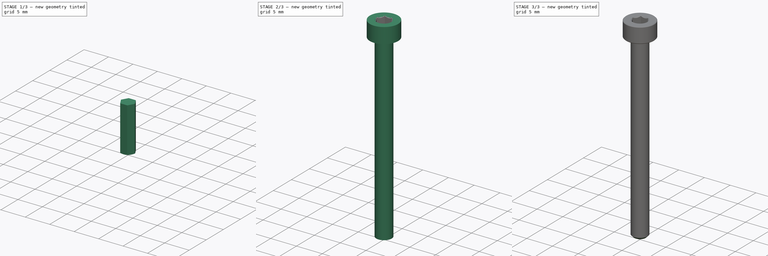
[diagram: build sequence overview — one tinted view per stage of 3, left to right]
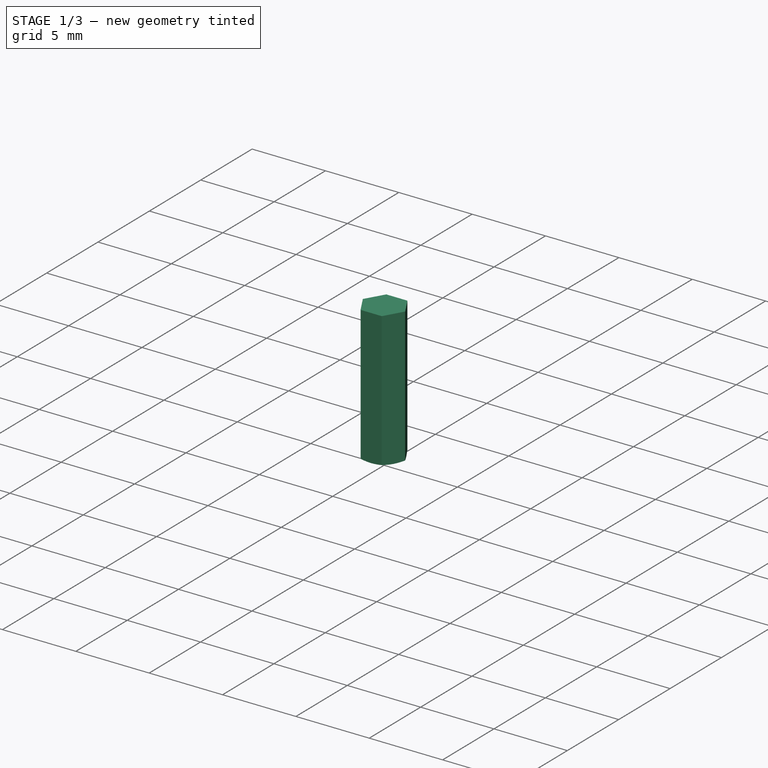
[diagram: stage 1 of 3 — iso view after this stage's code; geometry added in this stage tinted green]
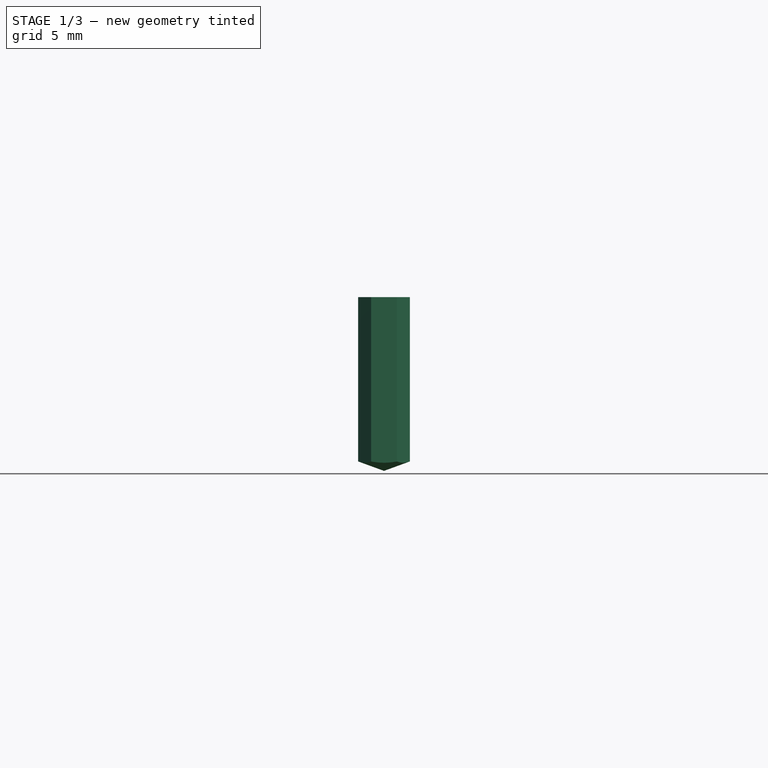
[diagram: stage 1 of 3 — front view after this stage's code; geometry added in this stage tinted green]
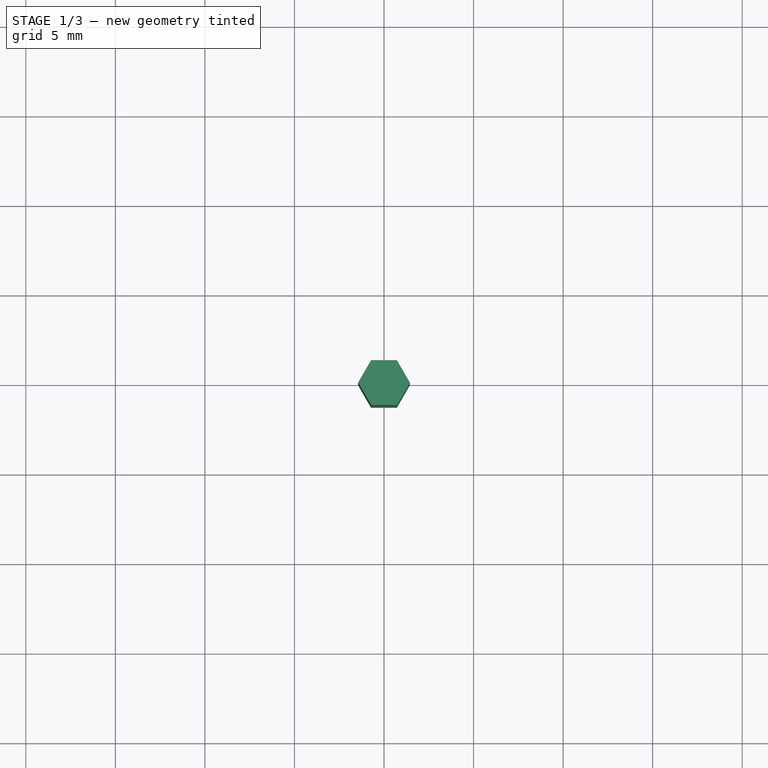
[diagram: stage 1 of 3 — top view after this stage's code; geometry added in this stage tinted green]
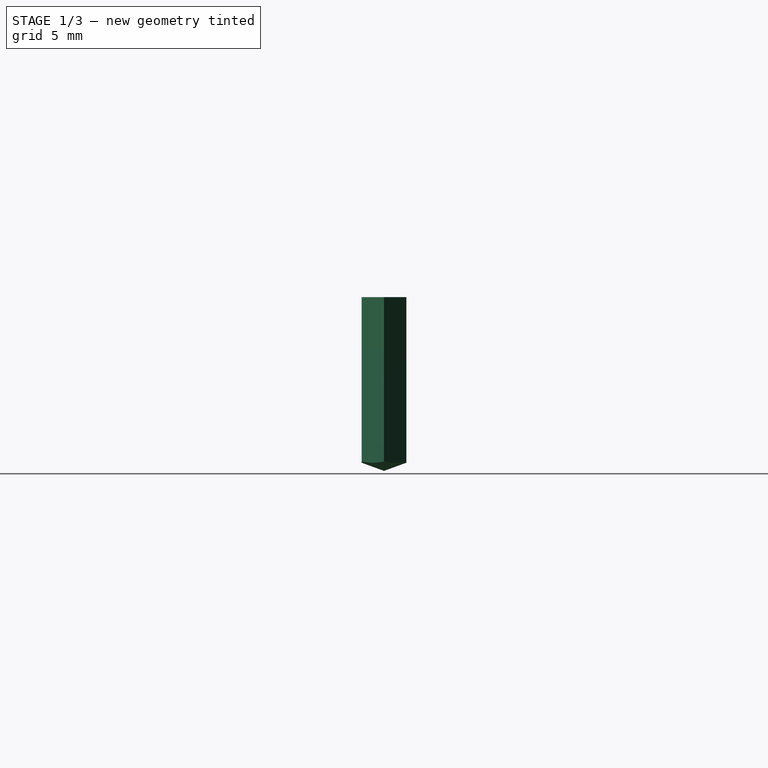
[diagram: stage 1 of 3 — right view after this stage's code; geometry added in this stage tinted green]
FCSTD DOCUMENT  (FreeCAD 0.14R3702 (Git))
Label: ISO4762_Hex_Socket_Head_Cap_Screw_M3x35
License: CC-BY 3.0
LicenseURL: http://creativecommons.org/licenses/by/3.0/
objects: Sketcher::SketchObject×3, PartDesign::Revolution×2, Part::Chamfer×2, PartDesign::Pocket×1, Part::Cut×1
note: 12 computed .brp shape members not serialized (recipe doc carries the construction recipe); baked Part::Feature solids carry a one-line shape summary decoded from their .brp

FEATURE [Sketcher::SketchObject] Sketch003  label="Sketch002"
  Placement = pos=(0,0,0) rot=(1,0,0;1.5708rad)
  sketch-geometry (4):
    g0: LineSegment StartX=0 StartY=0.29908 StartZ=0 EndX=2.75 EndY=1.3 EndZ=0
    g1: LineSegment StartX=2.75 StartY=1.3 StartZ=0 EndX=2.75 EndY=10 EndZ=0
    g2: LineSegment StartX=2.75 StartY=10 StartZ=0 EndX=0 EndY=10 EndZ=0
    g3: LineSegment StartX=0 StartY=10 StartZ=0 EndX=0 EndY=0.29908 EndZ=0
  constraints (12):
    c: Coincident(g0,g1)
    c: Vertical(g1)
    c: Coincident(g1,g2)
    c: Horizontal(g2)
    c: Coincident(g2,g3)
    c: Vertical(g3)
    c: Coincident(g0,g3)
    c: DistanceX(g2) = -2.75
    c: PointOnObject(g0,g-2)
    c: DistanceY(g-1,g0) = 1.3
    c: DistanceY(g2) = 10
    c: Angle(g0,g3) = 1.22173
FEATURE [PartDesign::Revolution] Revolution001
  Angle = 360
  Axis = (0,0,1)
  Base = (0,0,0)
  Placement = pos=(0,0,0) rot=(1,0,0;1.5708rad)
  ReferenceAxis = -> Sketch003 [V_Axis]
  Reversed = true
  Sketch = -> Sketch003
FEATURE [Sketcher::SketchObject] Sketch001  label="Hexagon"
  ExternalGeometry = -> [Revolution001]
  Placement = pos=(0,0,10) rot=(0,0,1;3.14159rad)
  Support = -> Revolution001 [Face3]
  sketch-geometry (9):
    g0: LineSegment StartX=-0.721688 StartY=1.25 StartZ=0 EndX=0.721688 EndY=1.25 EndZ=0
    g1: LineSegment StartX=0.721688 StartY=1.25 StartZ=0 EndX=1.44338 EndY=0 EndZ=0
    g2: LineSegment StartX=1.44338 StartY=0 StartZ=0 EndX=0.721688 EndY=-1.25 EndZ=0
    g3: LineSegment StartX=0.721688 StartY=-1.25 StartZ=0 EndX=-0.721688 EndY=-1.25 EndZ=0
    g4: LineSegment StartX=-0.721688 StartY=-1.25 StartZ=0 EndX=-1.44338 EndY=0 EndZ=0
    g5: LineSegment StartX=-1.44338 StartY=0 StartZ=0 EndX=-0.721688 EndY=1.25 EndZ=0
    g6: Circle [constr] CenterX=0 CenterY=0 CenterZ=0 NormalX=0 NormalY=0 NormalZ=1 Radius=1.44338
    g7: Circle CenterX=0 CenterY=0 CenterZ=0 NormalX=0 NormalY=0 NormalZ=1 Radius=3.75
    g8: LineSegment [constr] StartX=0 StartY=3.75 StartZ=0 EndX=0 EndY=2.75 EndZ=0
  constraints (26):
    c: Horizontal(g0)
    c: Coincident(g0,g1)
    c: Coincident(g1,g2)
    c: Coincident(g2,g3)
    c: Horizontal(g3)
    c: Coincident(g3,g4)
    c: Coincident(g4,g5)
    c: Coincident(g5,g0)
    c: Equal(g5,g0)
    c: Equal(g0,g4)
    c: Equal(g4,g3)
    c: Equal(g3,g2)
    c: Equal(g2,g1)
    c: PointOnObject(g0,g6)
    c: PointOnObject(g2,g6)
    c: PointOnObject(g1,g6)
    c: PointOnObject(g4,g6)
    c: PointOnObject(g0,g6)
    c: DistanceY(g3,g0) = 2.5
    c: Coincident(g6,g-1)
    c: Coincident(g7,g-1)
    c: Vertical(g8)
    c: PointOnObject(g8,g7)
    c: PointOnObject(g8,g-2)
    c: DistanceY(g8) = -1
    c: PointOnObject(g8,g-3)
FEATURE [PartDesign::Pocket] Pocket
  Length = 5
  Placement = pos=(0,0,0) rot=(1,0,0;1.5708rad)
  Sketch = -> Sketch001
  Type = 1
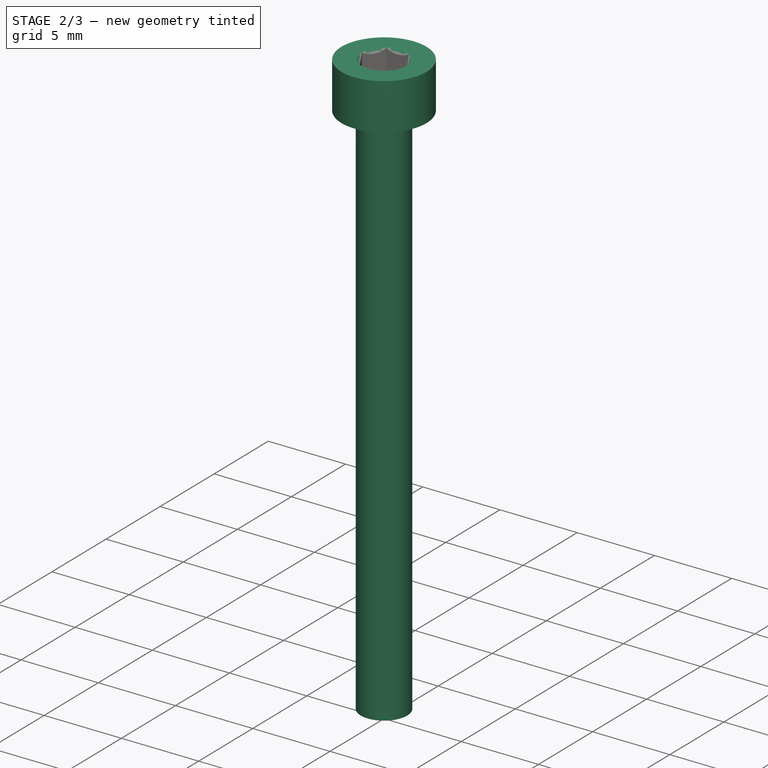
[diagram: stage 2 of 3 — iso view after this stage's code; geometry added in this stage tinted green]
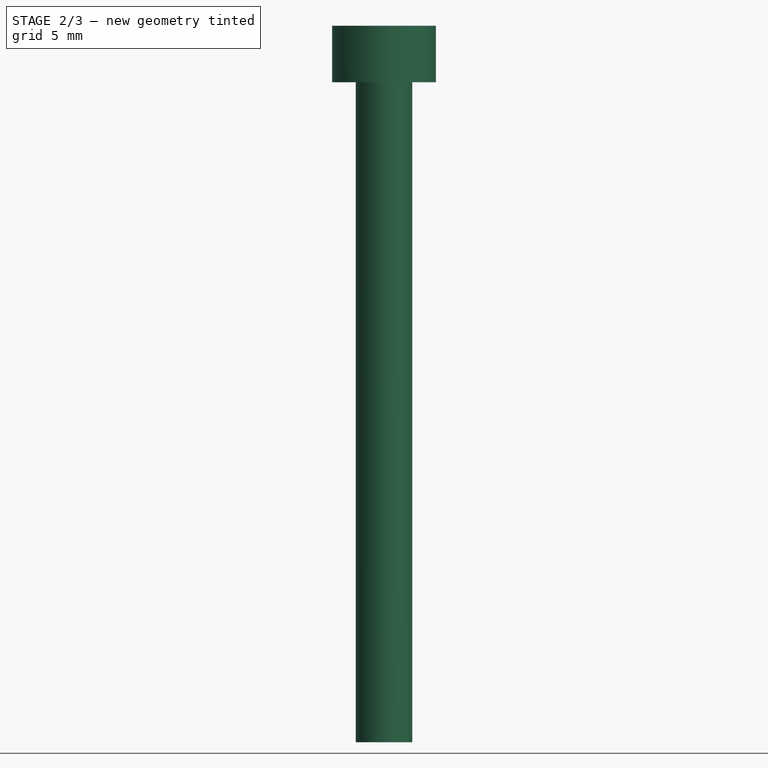
[diagram: stage 2 of 3 — front view after this stage's code; geometry added in this stage tinted green]
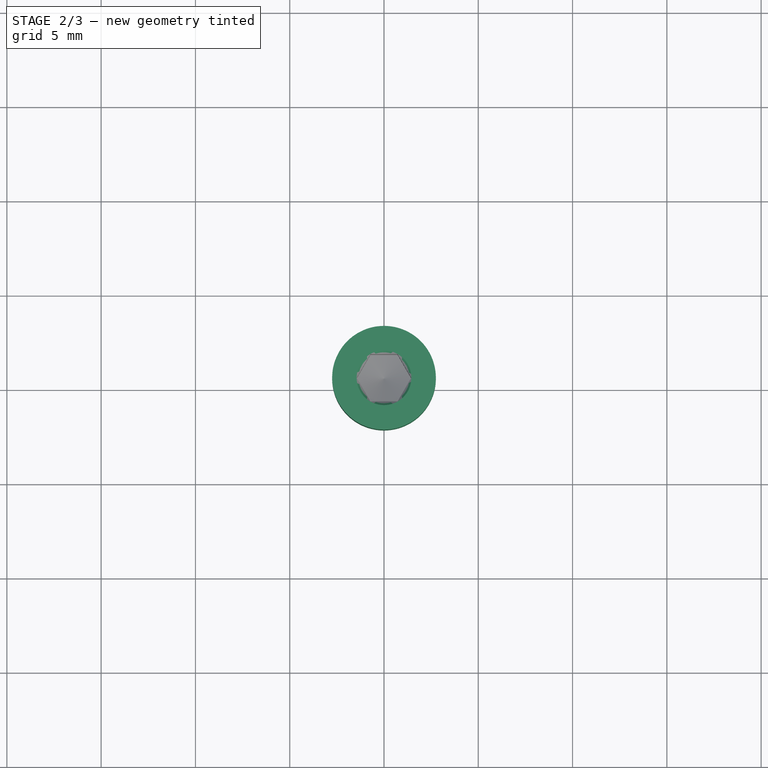
[diagram: stage 2 of 3 — top view after this stage's code; geometry added in this stage tinted green]
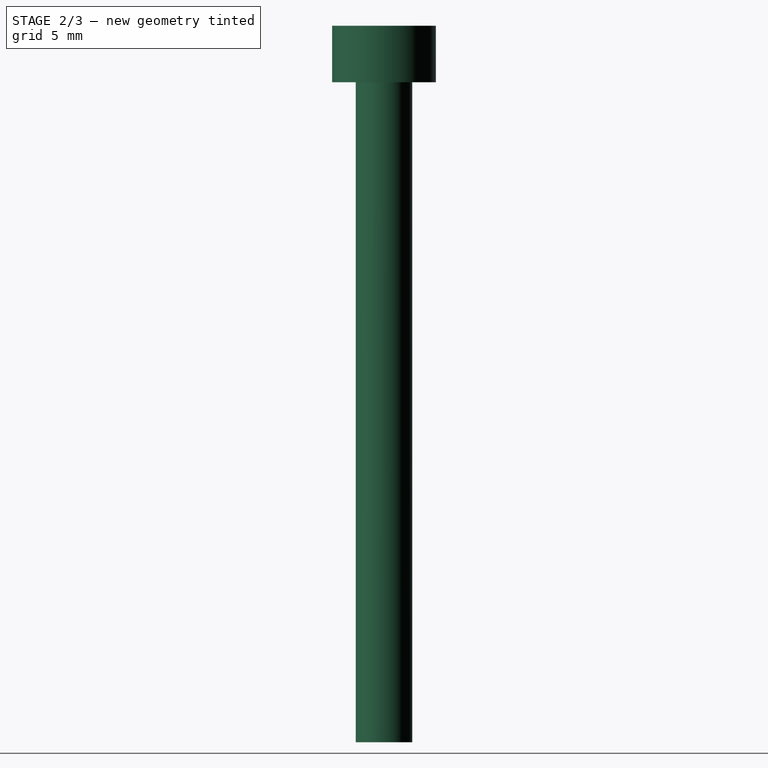
[diagram: stage 2 of 3 — right view after this stage's code; geometry added in this stage tinted green]
FEATURE [Sketcher::SketchObject] Sketch
  Placement = pos=(0,0,0) rot=(1,0,0;1.5708rad)
  sketch-geometry (7):
    g0: LineSegment StartX=1.45 StartY=3 StartZ=0 EndX=2.75 EndY=3 EndZ=0
    g1: LineSegment StartX=2.75 StartY=3 StartZ=0 EndX=2.75 EndY=0 EndZ=0
    g2: LineSegment StartX=2.75 StartY=0 StartZ=0 EndX=1.5 EndY=0 EndZ=0
    g3: LineSegment StartX=1.5 StartY=0 StartZ=0 EndX=1.5 EndY=-35 EndZ=0
    g4: LineSegment StartX=1.5 StartY=-35 StartZ=0 EndX=0 EndY=-35 EndZ=0
    g5: LineSegment StartX=0 StartY=-35 StartZ=0 EndX=0 EndY=1.55 EndZ=0
    g6: LineSegment StartX=0 StartY=1.55 StartZ=0 EndX=1.45 EndY=3 EndZ=0
  constraints (21):
    c: Horizontal(g0)
    c: Coincident(g0,g1)
    c: Vertical(g1)
    c: Coincident(g1,g2)
    c: Horizontal(g2)
    c: Coincident(g2,g3)
    c: Vertical(g3)
    c: Coincident(g3,g4)
    c: Horizontal(g4)
    c: Coincident(g4,g5)
    c: Vertical(g5)
    c: Coincident(g0,g6)
    c: DistanceX(g4) = -1.5
    c: DistanceY(g1,g3) = -35
    c: Angle(g6,g0) = 2.35619
    c: DistanceY(g1) = -3
    c: DistanceX(g0,g5) = -2.75
    c: DistanceX(g0,g5) = -1.45
    c: PointOnObject(g1,g-1)
    c: PointOnObject(g5,g-2)
    c: Coincident(g6,g5)
FEATURE [PartDesign::Revolution] Revolution  label="main-body"
  Angle = 360
  Axis = (0,0,1)
  Base = (0,0,0)
  Placement = pos=(0,0,0) rot=(1,0,0;1.5708rad)
  ReferenceAxis = -> Sketch [V_Axis]
  Reversed = true
  Sketch = -> Sketch
FEATURE [Part::Cut] Cut
  Base = -> Revolution
  Tool = -> Pocket
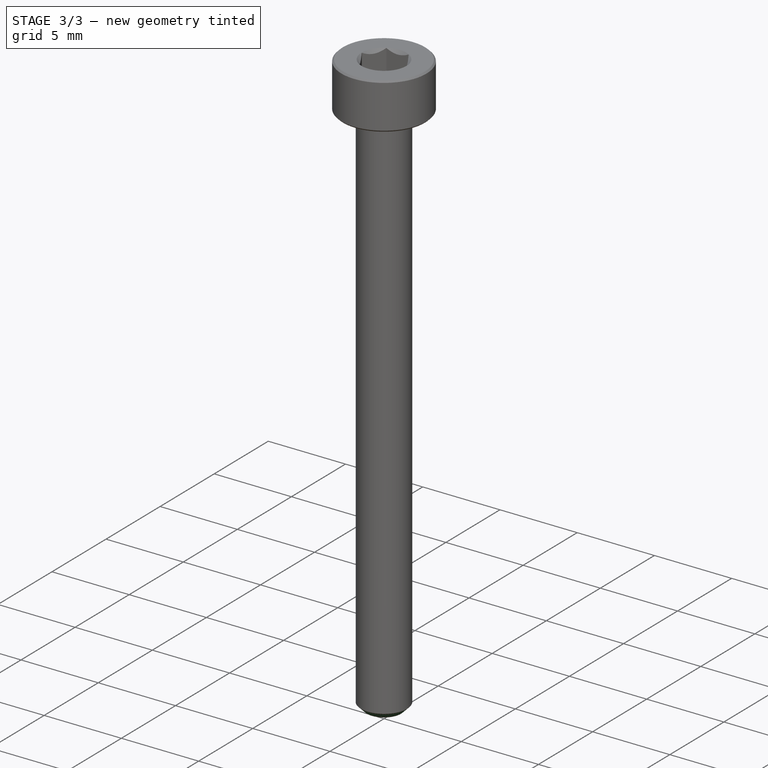
[diagram: stage 3 of 3 — iso view after this stage's code; geometry added in this stage tinted green]
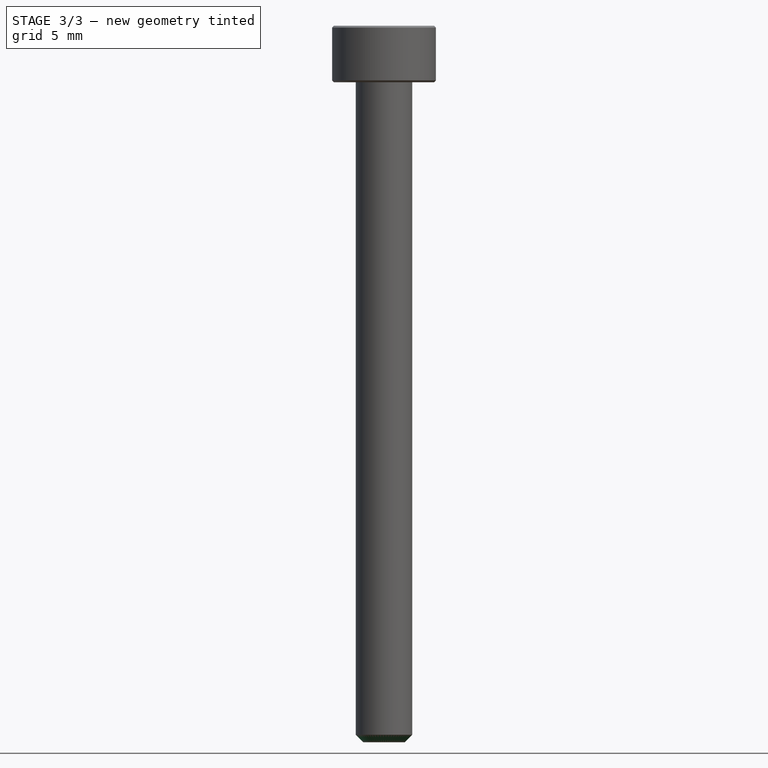
[diagram: stage 3 of 3 — front view after this stage's code; geometry added in this stage tinted green]
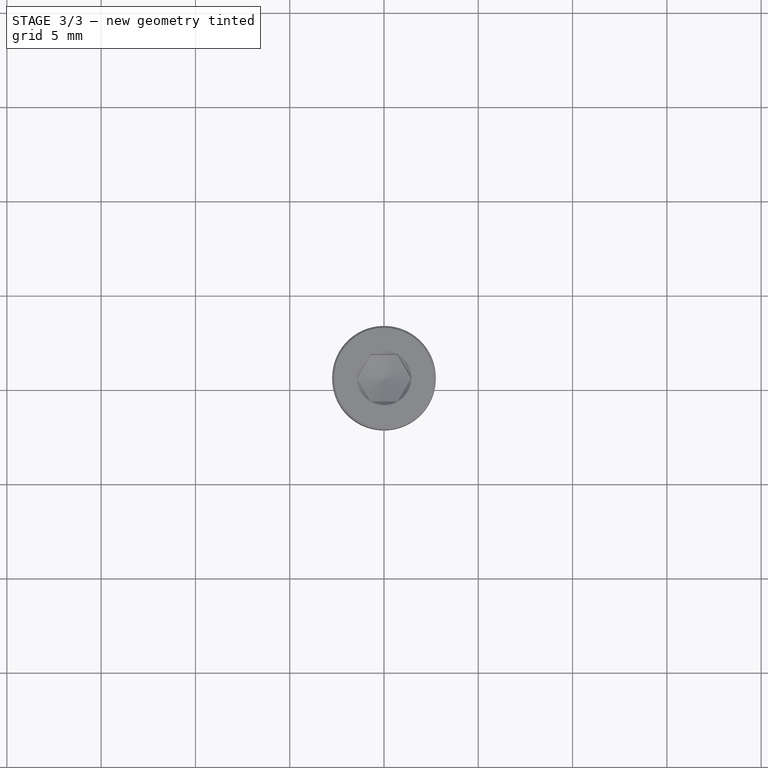
[diagram: stage 3 of 3 — top view after this stage's code; geometry added in this stage tinted green]
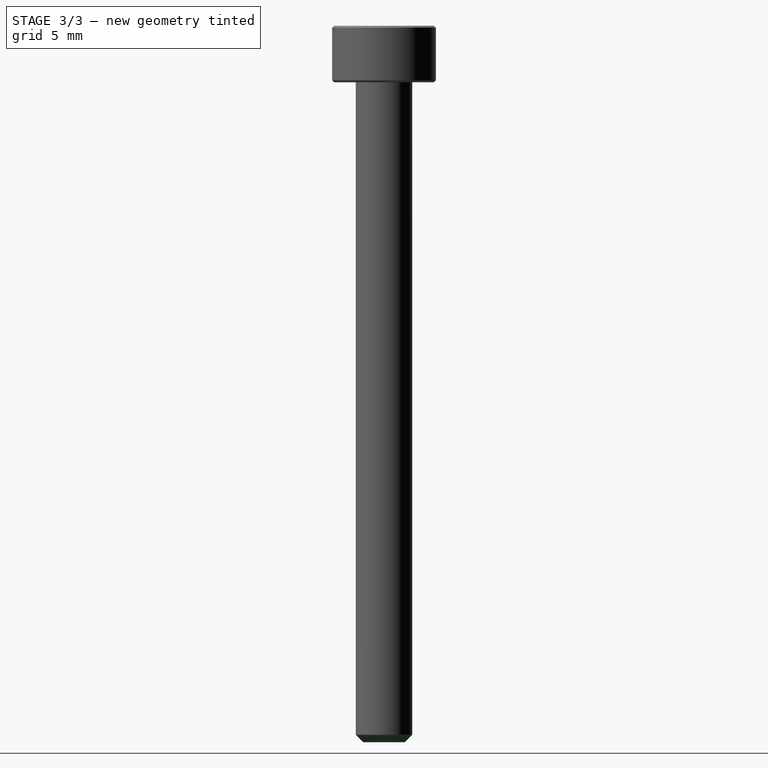
[diagram: stage 3 of 3 — right view after this stage's code; geometry added in this stage tinted green]
FEATURE [Part::Chamfer] Chamfer
  Base = -> Cut
  Edges = 1 edges r=0.4: [Edge27]
FEATURE [Part::Chamfer] Chamfer001
  Base = -> Chamfer
  Edges = 2 edges r=0.1: [Edge6,Edge7]
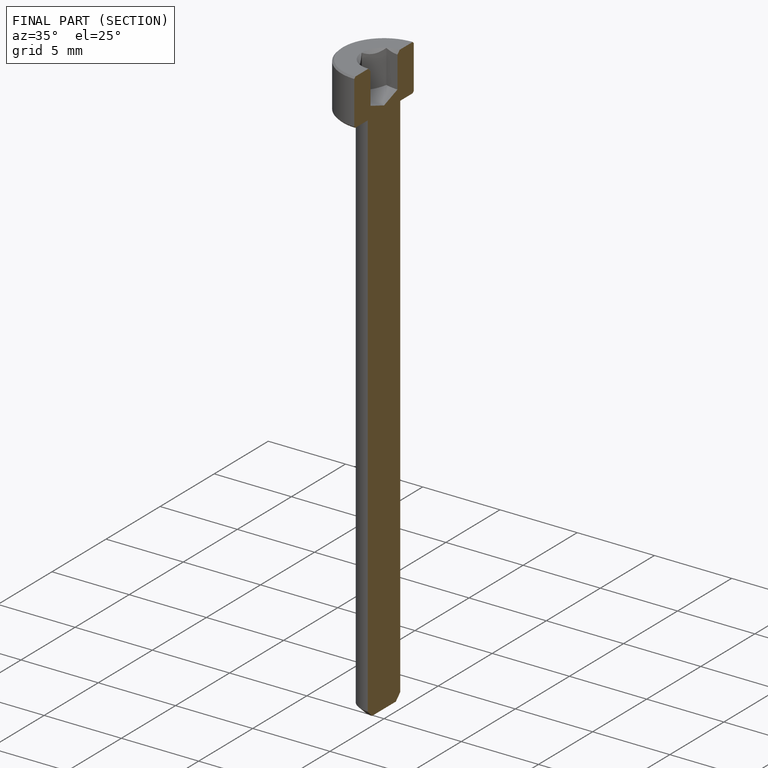
[diagram: finished part — half-section view (interior)]
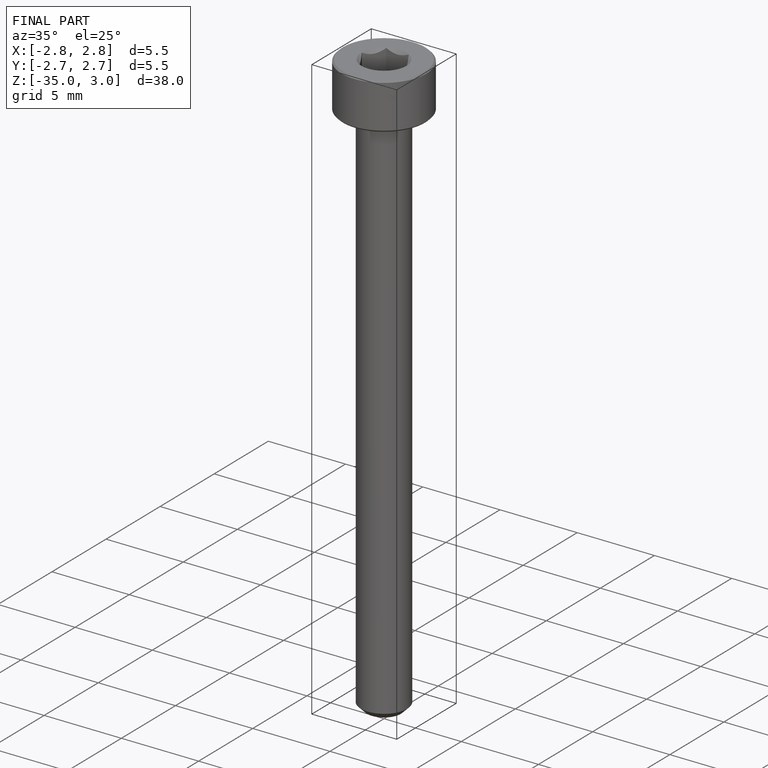
[diagram: finished part — iso view with bounding-box wireframe]
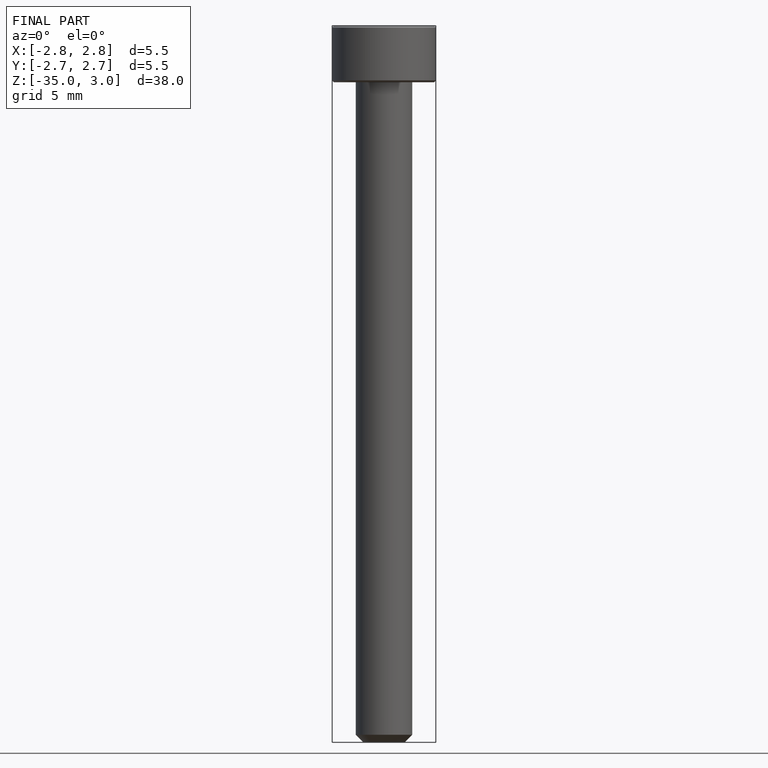
[diagram: finished part — front view with bounding-box wireframe]
